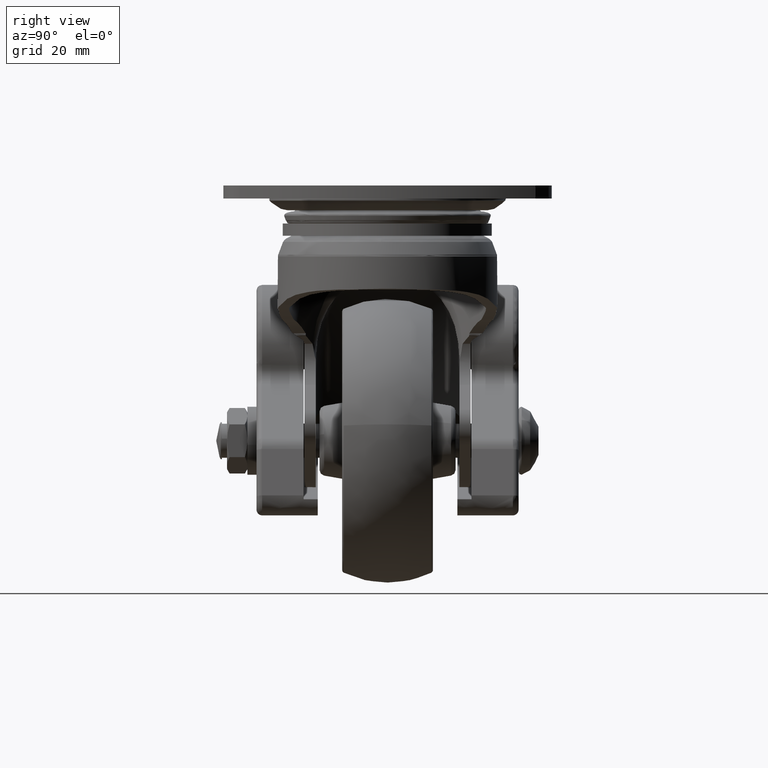
[diagram: clean part render]
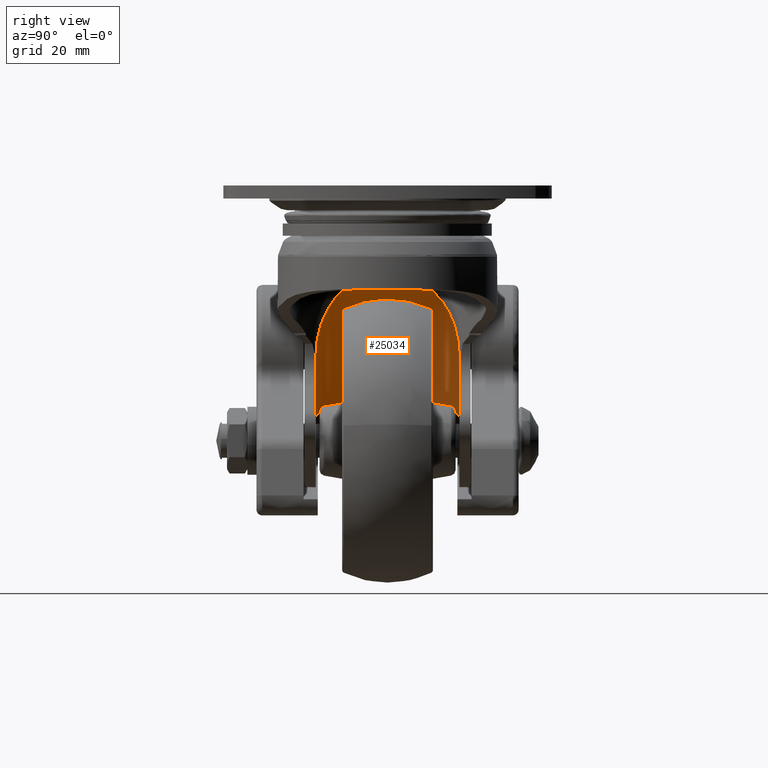
[diagram: same view with one face highlighted and labeled with its STEP entity id]
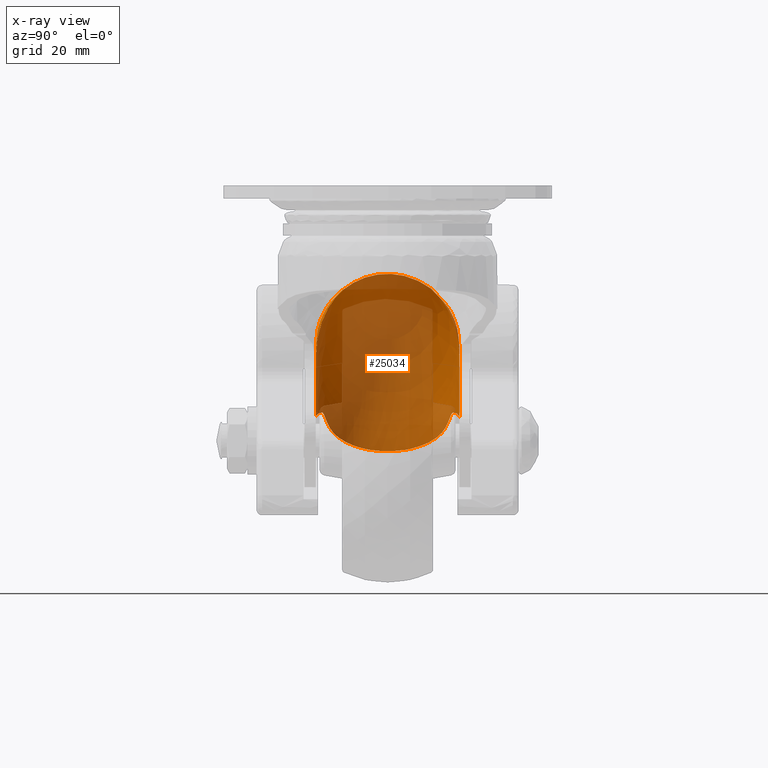
[diagram: x-ray of the same camera — body ghosted, the highlighted face saturated]
A machine part, right view. The second image highlights one B-rep face of the part: STEP entity #25034.
The next image is the same camera in x-ray: the body ghosted, the highlighted face saturated — about 70% of this face is hidden behind the body in this view.
In plain terms, the highlighted face is a freeform B-spline surface patch.
Its self-contained STEP definition (entity closure, byte-faithful):
#20699=CARTESIAN_POINT('',(-49.951948609154101,-3.185826654567455,-46.617844333149698));
#20700=VERTEX_POINT('',#20699);
#20701=CARTESIAN_POINT('',(-49.951948609149603,3.185826654585640,-46.617844333146202));
#20702=VERTEX_POINT('',#20701);
#20703=CARTESIAN_POINT('',(-49.951948609154101,-3.185826654567460,-46.617844333149797));
#20704=CARTESIAN_POINT('',(-50.016710709917866,-2.926549337797683,-46.668226546334992));
#20705=CARTESIAN_POINT('',(-50.073722563056997,-2.665436644574982,-46.706454283910610));
#20706=CARTESIAN_POINT('',(-50.171881320253647,-2.140157559981664,-46.767579103531823));
#20707=CARTESIAN_POINT('',(-50.213032522862193,-1.875984604010743,-46.790379975194121));
#20708=CARTESIAN_POINT('',(-50.279170487170589,-1.344891411273486,-46.825304705761489));
#20709=CARTESIAN_POINT('',(-50.304159348015332,-1.077969142038805,-46.837397511540402));
#20710=CARTESIAN_POINT('',(-50.337634945595198,-0.541514223877174,-46.853321062972753));
#20711=CARTESIAN_POINT('',(-50.346123360003169,-0.271981216651162,-46.857144180601210));
#20712=CARTESIAN_POINT('',(-50.346159028566532,0.134279719252725,-46.857160541771528));
#20713=CARTESIAN_POINT('',(-50.344048291225128,0.269728562428805,-46.856196787455652));
#20714=CARTESIAN_POINT('',(-50.335638563002057,0.539626043092193,-46.852303862828172));
#20715=CARTESIAN_POINT('',(-50.329340044060359,0.674235390254327,-46.849374933616403));
#20716=CARTESIAN_POINT('',(-50.304242965765447,1.077039757476378,-46.837438161526187));
#20717=CARTESIAN_POINT('',(-50.279244680199461,1.344216088543992,-46.825342461289317));
#20718=CARTESIAN_POINT('',(-50.213077171327207,1.875705477227742,-46.790404972403387));
#20719=CARTESIAN_POINT('',(-50.171905760073628,2.140020612255496,-46.767593908603743));
#20720=CARTESIAN_POINT('',(-50.073718751178824,2.665463204254526,-46.706452324057231));
#20721=CARTESIAN_POINT('',(-50.016698703145003,2.926597407330950,-46.668217205566719));
#20722=CARTESIAN_POINT('',(-49.951948609149603,3.185826654585635,-46.617844333146202));
#20723=B_SPLINE_CURVE_WITH_KNOTS('',3,(#20703,#20704,#20705,#20706,#20707,#20708,#20709,#20710,#20711,#20712,#20713,#20714,#20715,#20716,#20717,#20718,#20719,#20720,#20721,#20722),.UNSPECIFIED.,.F.,.U.,(4,2,2,2,2,2,2,2,2,4),(0.0,0.125000000000000,0.250000000000000,0.375000000000000,0.500000000000000,0.562500000000000,0.625000000000000,0.750000000000000,0.875000000000000,1.0),.UNSPECIFIED.);
#20724=EDGE_CURVE('',#20700,#20702,#20723,.T.);
#21308=CARTESIAN_POINT('',(-13.049048608369461,-12.650000000000000,-30.251865507138149));
#21309=VERTEX_POINT('',#21308);
#21319=CARTESIAN_POINT('',(-13.049048608369461,12.650000000000000,-30.251865507138149));
#21320=VERTEX_POINT('',#21319);
#21321=CARTESIAN_POINT('',(-13.049048608369430,12.650000000000000,-30.251865507138149));
#21322=CARTESIAN_POINT('',(-13.094314751037180,12.650000000000000,-29.770512729579110));
#21323=CARTESIAN_POINT('',(-13.162987734374020,12.630952149096650,-29.293596347752860));
#21324=CARTESIAN_POINT('',(-13.296897432158060,12.576236949162620,-28.584125186068420));
#21325=CARTESIAN_POINT('',(-13.346694200315881,12.553616279329370,-28.348621412933099));
#21326=CARTESIAN_POINT('',(-13.428682848332690,12.513216531832240,-27.996773126288780));
#21327=CARTESIAN_POINT('',(-13.457237173111190,12.498664536538870,-27.879706521774011));
#21328=CARTESIAN_POINT('',(-13.516386654334781,12.467580237104730,-27.647236051019590));
#21329=CARTESIAN_POINT('',(-13.547016703753780,12.451031201314690,-27.531677075637770));
#21330=CARTESIAN_POINT('',(-13.705173745750219,12.363347285720170,-26.957134430858559));
#21331=CARTESIAN_POINT('',(-13.847661705821180,12.277478572254390,-26.507862425143301));
#21332=CARTESIAN_POINT('',(-14.158716487562280,12.075307305902300,-25.627533900558689));
#21333=CARTESIAN_POINT('',(-14.327302152399970,11.958988259398719,-25.196489054506092));
#21334=CARTESIAN_POINT('',(-14.685913632533270,11.695117190588549,-24.351057524779701));
#21335=CARTESIAN_POINT('',(-14.875951715993819,11.547561545235331,-23.936676513617069));
#21336=CARTESIAN_POINT('',(-15.124437127789500,11.342185773185600,-23.428552133190799));
#21337=CARTESIAN_POINT('',(-15.174682361621651,11.300060503967110,-23.327421296154458));
#21338=CARTESIAN_POINT('',(-15.276211637143881,11.213660111724080,-23.126139156047682));
#21339=CARTESIAN_POINT('',(-15.327551377121370,11.169335772916030,-23.025881542423530));
#21340=CARTESIAN_POINT('',(-15.482565707149110,11.033476454150961,-22.727484674798220));
#21341=CARTESIAN_POINT('',(-15.587197440918310,10.939096452913450,-22.531773751059941));
#21342=CARTESIAN_POINT('',(-15.904135599253969,10.644257732251241,-21.953986686546319));
#21343=CARTESIAN_POINT('',(-16.119476568124060,10.432134477990321,-21.581229232256192));
#21344=CARTESIAN_POINT('',(-16.554185837394812,9.974476716952294,-20.859610654960740));
#21345=CARTESIAN_POINT('',(-16.773564974891521,9.728950868892021,-20.510750459445951));
#21346=CARTESIAN_POINT('',(-17.102725851749820,9.332999311657156,-20.005301955033062));
#21347=CARTESIAN_POINT('',(-17.212461659392389,9.196394902612136,-19.839799332966820));
#21348=CARTESIAN_POINT('',(-17.376710633827720,8.984122703501765,-19.596068706156931));
#21349=CARTESIAN_POINT('',(-17.431462364320691,8.912053367685742,-19.515490508086739));
#21350=CARTESIAN_POINT('',(-17.540393511146291,8.765900609242260,-19.356422892094422));
#21351=CARTESIAN_POINT('',(-17.594582151554160,8.691808921909427,-19.277917949373670));
#21352=CARTESIAN_POINT('',(-17.863978067259971,8.316191352161088,-18.890518961394939));
#21353=CARTESIAN_POINT('',(-18.074553952103919,7.999233235349609,-18.596954973839189));
#21354=CARTESIAN_POINT('',(-18.481545884996191,7.329596137220316,-18.042799767827091));
#21355=CARTESIAN_POINT('',(-18.677978964348458,6.976936593033883,-17.782197417694171));
#21356=CARTESIAN_POINT('',(-18.911681635076850,6.511161128756362,-17.478053521143821));
#21357=CARTESIAN_POINT('',(-18.957828159148900,6.416754036937226,-17.418309070280699));
#21358=CARTESIAN_POINT('',(-19.048848166638379,6.225349861332584,-17.301031013087101));
#21359=CARTESIAN_POINT('',(-19.093720091311390,6.128344716680036,-17.243500465356320));
#21360=CARTESIAN_POINT('',(-19.225488379152200,5.835155718067523,-17.075318222866169));
#21361=CARTESIAN_POINT('',(-19.309820890046339,5.636217324647125,-16.968707299139421));
#21362=CARTESIAN_POINT('',(-19.551563325170559,5.028711216503145,-16.665437301182809));
#21363=CARTESIAN_POINT('',(-19.697752229578889,4.609492168893882,-16.485273523385320));
#21364=CARTESIAN_POINT('',(-19.891245967815159,3.957707769777073,-16.249283406727269));
#21365=CARTESIAN_POINT('',(-19.951438201430960,3.736611220867187,-16.176345168639099));
#21366=CARTESIAN_POINT('',(-20.034760104647841,3.398908862136884,-16.075847137433051));
#21367=CARTESIAN_POINT('',(-20.061372226081730,3.285331017992628,-16.043833982367900));
#21368=CARTESIAN_POINT('',(-20.112177426684081,3.056092935574122,-15.982850913229679));
#21369=CARTESIAN_POINT('',(-20.136341525546609,2.940529607662348,-15.953916014730041));
#21370=CARTESIAN_POINT('',(-20.249972966902821,2.362327629250385,-15.818109678718271));
#21371=CARTESIAN_POINT('',(-20.318771297516559,1.894788304556411,-15.736710710507131));
#21372=CARTESIAN_POINT('',(-20.411045609615250,0.949723510081941,-15.627753877743659));
#21373=CARTESIAN_POINT('',(-20.434531497257989,0.472199949400071,-15.600186765683191));
#21374=CARTESIAN_POINT('',(-20.434096875770329,-0.131222985594782,-15.600697920158391));
#21375=CARTESIAN_POINT('',(-20.432516822247241,-0.252234614331121,-15.602555976779820));
#21376=CARTESIAN_POINT('',(-20.426318418525071,-0.494923670385986,-15.609847856829539));
#21377=CARTESIAN_POINT('',(-20.421703332635740,-0.616283211002929,-15.615277855397119));
#21378=CARTESIAN_POINT('',(-20.403425539509431,-0.978675010698859,-15.636797131426761));
#21379=CARTESIAN_POINT('',(-20.367208757691429,-1.458775845874774,-15.679460144739330));
#21380=CARTESIAN_POINT('',(-20.307948213848320,-1.932835966742944,-15.749558606432890));
#21381=CARTESIAN_POINT('',(-20.255042112170450,-2.286142467701807,-15.812366197881650));
#21382=CARTESIAN_POINT('',(-20.235996009436850,-2.403537959134941,-15.835009055965941));
#21383=CARTESIAN_POINT('',(-20.195105445516010,-2.637583858175276,-15.883715841834061));
#21384=CARTESIAN_POINT('',(-20.173219293647620,-2.754428778580712,-15.909829724095159));
#21385=CARTESIAN_POINT('',(-20.057592402972059,-3.333163139793181,-16.048094842349879));
#21386=CARTESIAN_POINT('',(-19.945133671242150,-3.780274323747450,-16.183452990412029));
#21387=CARTESIAN_POINT('',(-19.685651755501329,-4.645789274716693,-16.500148960499821));
#21388=CARTESIAN_POINT('',(-19.538603362293870,-5.064175452179820,-16.681511686896609));
#21389=CARTESIAN_POINT('',(-19.335710294380451,-5.570267545617733,-16.936285081656290));
#21390=CARTESIAN_POINT('',(-19.294175412644240,-5.670638831932132,-16.988648230325520));
#21391=CARTESIAN_POINT('',(-19.209249448459829,-5.869704197014394,-17.096193171748709));
#21392=CARTESIAN_POINT('',(-19.165801796890388,-5.968522573529494,-17.151447293868230));
#21393=CARTESIAN_POINT('',(-19.033141238656722,-6.261634895392838,-17.320958250207038));
#21394=CARTESIAN_POINT('',(-18.942115886885219,-6.451516324561253,-17.438315497094550));
#21395=CARTESIAN_POINT('',(-18.662344855867051,-7.005785801874967,-17.802841702979549));
#21396=CARTESIAN_POINT('',(-18.466928525620020,-7.354854851726079,-18.062419931627161));
#21397=CARTESIAN_POINT('',(-18.063093919316369,-8.016799760441982,-18.612860315635182));
#21398=CARTESIAN_POINT('',(-17.854658385659029,-8.329653497866588,-18.903734957869570));
#21399=CARTESIAN_POINT('',(-17.428957978834770,-8.922255380976530,-19.516282093707559));
#21400=CARTESIAN_POINT('',(-17.211680602453740,-9.201992544827125,-19.837957981814029));
#21401=CARTESIAN_POINT('',(-16.882160091729698,-9.598292206900860,-20.344013872151368));
#21402=CARTESIAN_POINT('',(-16.771523231324061,-9.726704736607823,-20.516956277133200));
#21403=CARTESIAN_POINT('',(-16.551594726449029,-9.973706965370642,-20.867595212675852));
#21404=CARTESIAN_POINT('',(-16.442092737591661,-10.092565407174961,-21.045603371878141));
#21405=CARTESIAN_POINT('',(-16.115685799337729,-10.435965190971549,-21.587690264874290));
#21406=CARTESIAN_POINT('',(-15.900872608937171,-10.647369213972320,-21.959807376996661));
#21407=CARTESIAN_POINT('',(-15.480696946264290,-11.038094128374510,-22.726056200606092));
#21408=CARTESIAN_POINT('',(-15.275323493888591,-11.217411010328901,-23.120183987279539));
#21409=CARTESIAN_POINT('',(-14.977507197380721,-11.463657190463360,-23.728919825808081));
#21410=CARTESIAN_POINT('',(-14.879946205430890,-11.541942234314680,-23.934762509524202));
#21411=CARTESIAN_POINT('',(-14.688838011877319,-11.691031362949531,-24.352574800589149));
#21412=CARTESIAN_POINT('',(-14.595705888326320,-11.761509156579020,-24.563654399987190));
#21413=CARTESIAN_POINT('',(-14.325104916720059,-11.960572890865169,-25.201808604405748));
#21414=CARTESIAN_POINT('',(-14.156065323887480,-12.077105958944809,-25.634522122091720));
#21415=CARTESIAN_POINT('',(-13.845079643399631,-12.279079993597540,-26.515693698440600));
#21416=CARTESIAN_POINT('',(-13.703118283306710,-12.364532976363300,-26.964144067623820));
#21417=CARTESIAN_POINT('',(-13.514497736748680,-12.469036642889121,-27.650042025498561));
#21418=CARTESIAN_POINT('',(-13.455686860153151,-12.499910603845329,-27.880884586006001));
#21419=CARTESIAN_POINT('',(-13.374170649770999,-12.540077188781380,-28.230709639281802));
#21420=CARTESIAN_POINT('',(-13.348116097573561,-12.552440766240910,-28.347912067990510));
#21421=CARTESIAN_POINT('',(-13.298354299525529,-12.575067099020099,-28.583553413976588));
#21422=CARTESIAN_POINT('',(-13.274669813749020,-12.585318186785271,-28.701901428520500));
#21423=CARTESIAN_POINT('',(-13.162893711673080,-12.630994229192581,-29.294048954574599));
#21424=CARTESIAN_POINT('',(-13.094260039600981,-12.650000000000009,-29.771094522067330));
#21425=CARTESIAN_POINT('',(-13.049048608369420,-12.650000000000000,-30.251865507138142));
#21426=B_SPLINE_CURVE_WITH_KNOTS('',3,(#21321,#21322,#21323,#21324,#21325,#21326,#21327,#21328,#21329,#21330,#21331,#21332,#21333,#21334,#21335,#21336,#21337,#21338,#21339,#21340,#21341,#21342,#21343,#21344,#21345,#21346,#21347,#21348,#21349,#21350,#21351,#21352,#21353,#21354,#21355,#21356,#21357,#21358,#21359,#21360,#21361,#21362,#21363,#21364,#21365,#21366,#21367,#21368,#21369,#21370,#21371,#21372,#21373,#21374,#21375,#21376,#21377,#21378,#21379,#21380,#21381,#21382,#21383,#21384,#21385,#21386,#21387,#21388,#21389,#21390,#21391,#21392,#21393,#21394,#21395,#21396,#21397,#21398,#21399,#21400,#21401,#21402,#21403,#21404,#21405,#21406,#21407,#21408,#21409,#21410,#21411,#21412,#21413,#21414,#21415,#21416,#21417,#21418,#21419,#21420,#21421,#21422,#21423,#21424,#21425),.UNSPECIFIED.,.F.,.U.,(4,2,2,2,2,2,2,2,2,2,2,2,2,2,2,2,2,2,2,2,2,2,2,2,2,2,2,2,2,1,2,2,2,2,2,2,2,2,2,2,2,2,2,2,2,2,2,2,2,2,2,2,4),(0.0,0.031249999999999,0.046874999999998,0.054687499999998,0.062499999999997,0.093749999999996,0.124999999999996,0.156249999999995,0.164062499999995,0.171874999999995,0.187499999999994,0.218749999999993,0.249999999999993,0.265624999999992,0.273437499999992,0.281249999999992,0.312499999999992,0.343749999999993,0.351562499999993,0.359374999999993,0.374999999999993,0.406249999999993,0.421874999999993,0.429687499999993,0.437499999999994,0.468749999999994,0.499999999999994,0.507812499999994,0.515624999999994,0.531249999999994,0.546874999999994,0.554687499999994,0.562499999999994,0.593749999999995,0.624999999999995,0.632812499999995,0.640624999999995,0.656249999999995,0.687499999999996,0.718749999999996,0.749999999999996,0.765624999999997,0.781249999999997,0.812499999999997,0.843749999999998,0.859374999999998,0.874999999999998,0.906249999999999,0.937499999999999,0.953124999999999,0.960937500000000,0.968750000000000,1.0),.UNSPECIFIED.);
#21427=EDGE_CURVE('',#21320,#21309,#21426,.T.);
#21627=CARTESIAN_POINT('',(-37.290212132296347,12.650000000000000,-41.081570756489199));
#21628=VERTEX_POINT('',#21627);
#21629=CARTESIAN_POINT('',(-13.049048608369420,12.650000000000000,-30.251865507138081));
#21630=CARTESIAN_POINT('',(-20.306420710780948,12.649999999999999,-26.339301999856662));
#21631=CARTESIAN_POINT('',(-27.834211466742762,12.650000000000000,-29.702331789470080));
#21632=CARTESIAN_POINT('',(-35.362002222704568,12.649999999999999,-33.065361579083508));
#21633=CARTESIAN_POINT('',(-37.290212132296347,12.650000000000000,-41.081570756489192));
#21641=(BOUNDED_CURVE()B_SPLINE_CURVE(2,(#21629,#21630,#21631,#21632,#21633),.UNSPECIFIED.,.F.,.U.)B_SPLINE_CURVE_WITH_KNOTS((3,2,3),(0.0,0.500000000000000,1.0),.UNSPECIFIED.)CURVE()GEOMETRIC_REPRESENTATION_ITEM()RATIONAL_B_SPLINE_CURVE((1.0,0.897248963918560,1.0,0.897248963918560,1.0))REPRESENTATION_ITEM(''));
#21642=EDGE_CURVE('',#21320,#21628,#21641,.T.);
#21753=CARTESIAN_POINT('',(-37.290212132296347,-12.650000000000000,-41.081570756489199));
#21754=VERTEX_POINT('',#21753);
#21755=CARTESIAN_POINT('',(-13.049048608369420,-12.650000000000000,-30.251865507138081));
#21756=CARTESIAN_POINT('',(-20.306420710780948,-12.649999999999999,-26.339301999856662));
#21757=CARTESIAN_POINT('',(-27.834211466742762,-12.650000000000000,-29.702331789470080));
#21758=CARTESIAN_POINT('',(-35.362002222704568,-12.649999999999999,-33.065361579083508));
#21759=CARTESIAN_POINT('',(-37.290212132296347,-12.650000000000000,-41.081570756489192));
#21767=(BOUNDED_CURVE()B_SPLINE_CURVE(2,(#21755,#21756,#21757,#21758,#21759),.UNSPECIFIED.,.F.,.U.)B_SPLINE_CURVE_WITH_KNOTS((3,2,3),(0.0,0.500000000000000,1.0),.UNSPECIFIED.)CURVE()GEOMETRIC_REPRESENTATION_ITEM()RATIONAL_B_SPLINE_CURVE((1.0,0.897248963918560,1.0,0.897248963918560,1.0))REPRESENTATION_ITEM(''));
#21768=EDGE_CURVE('',#21309,#21754,#21767,.T.);
#24200=CARTESIAN_POINT('',(-38.246648354383147,12.607435619457521,-40.629877154869952));
#24201=VERTEX_POINT('',#24200);
#24202=CARTESIAN_POINT('',(-38.246648354383147,12.607435619457529,-40.629877154869952));
#24203=CARTESIAN_POINT('',(-37.919136576381163,12.636291631080629,-40.765818899877537));
#24204=CARTESIAN_POINT('',(-37.600410379028673,12.650000000000000,-40.916513262149032));
#24205=CARTESIAN_POINT('',(-37.290212132296347,12.650000000000000,-41.081570756489207));
#24206=QUASI_UNIFORM_CURVE('',3,(#24202,#24203,#24204,#24205),.UNSPECIFIED.,.F.,.U.);
#24207=EDGE_CURVE('',#24201,#21628,#24206,.T.);
#24235=CARTESIAN_POINT('',(-38.246648488302696,-12.607435622033821,-40.629877810917193));
#24236=VERTEX_POINT('',#24235);
#24237=CARTESIAN_POINT('',(-37.290212132296347,-12.650000000000000,-41.081570756489207));
#24238=CARTESIAN_POINT('',(-37.600410317632878,-12.650000000000000,-40.916513294817932));
#24239=CARTESIAN_POINT('',(-37.919136450222133,-12.636291636499060,-40.765818959543971));
#24240=CARTESIAN_POINT('',(-38.246648488302696,-12.607435622033821,-40.629877810917193));
#24241=QUASI_UNIFORM_CURVE('',3,(#24237,#24238,#24239,#24240),.UNSPECIFIED.,.F.,.U.);
#24242=EDGE_CURVE('',#21754,#24236,#24241,.T.);
#24322=CARTESIAN_POINT('',(-48.054457000000212,7.342527084870750,-45.270967999999897));
#24323=VERTEX_POINT('',#24322);
#24324=CARTESIAN_POINT('',(-47.000676586926403,8.627497003607710,-44.460446245965102));
#24325=VERTEX_POINT('',#24324);
#24326=CARTESIAN_POINT('',(-48.054457000000212,7.342527084870750,-45.270967999999897));
#24327=CARTESIAN_POINT('',(-47.728294301519327,7.803608380646840,-45.020097758869873));
#24328=CARTESIAN_POINT('',(-47.376405992569673,8.231111655961154,-44.749440490800232));
#24329=CARTESIAN_POINT('',(-47.000676586926403,8.627497003607710,-44.460446245965102));
#24330=QUASI_UNIFORM_CURVE('',3,(#24326,#24327,#24328,#24329),.UNSPECIFIED.,.F.,.U.);
#24331=EDGE_CURVE('',#24323,#24325,#24330,.T.);
#24353=CARTESIAN_POINT('',(-47.000676859331698,-8.627496703686202,-44.460445891804049));
#24354=VERTEX_POINT('',#24353);
#24355=CARTESIAN_POINT('',(-48.054456817734902,-7.342527336947860,-45.270968257164000));
#24356=VERTEX_POINT('',#24355);
#24357=CARTESIAN_POINT('',(-47.000676859331790,-8.627496703686308,-44.460445891804113));
#24358=CARTESIAN_POINT('',(-47.376406038084497,-8.231111595200440,-44.749440525808282));
#24359=CARTESIAN_POINT('',(-47.728294274954322,-7.803608405557957,-45.020097738437201));
#24360=CARTESIAN_POINT('',(-48.054456817734902,-7.342527336947860,-45.270968257164000));
#24361=QUASI_UNIFORM_CURVE('',3,(#24357,#24358,#24359,#24360),.UNSPECIFIED.,.F.,.U.);
#24362=EDGE_CURVE('',#24354,#24356,#24361,.T.);
#24394=CARTESIAN_POINT('',(-44.195181903451903,-10.736093179816059,-41.586183669560803));
#24395=VERTEX_POINT('',#24394);
#24396=CARTESIAN_POINT('',(-47.000676859331698,-8.627496703686202,-44.460445891804049));
#24397=CARTESIAN_POINT('',(-46.532969300507951,-9.120916746775299,-44.100705794338779));
#24398=CARTESIAN_POINT('',(-46.053766844654497,-9.538355604012171,-43.685866773790472));
#24399=CARTESIAN_POINT('',(-45.459840888023727,-9.976195115904755,-43.087413459765273));
#24400=CARTESIAN_POINT('',(-45.341306003818410,-10.059545357638211,-42.963713885365379));
#24401=CARTESIAN_POINT('',(-45.105223375497900,-10.218014492905549,-42.707957343800530));
#24402=CARTESIAN_POINT('',(-44.987401388184438,-10.293291902410740,-42.575568413978090));
#24403=CARTESIAN_POINT('',(-44.639038711672633,-10.505345016550530,-42.168731637998540));
#24404=CARTESIAN_POINT('',(-44.413168739064467,-10.628748572737670,-41.884258532661917));
#24405=CARTESIAN_POINT('',(-44.195181903451868,-10.736093179816139,-41.586183669560867));
#24406=B_SPLINE_CURVE_WITH_KNOTS('',3,(#24396,#24397,#24398,#24399,#24400,#24401,#24402,#24403,#24404,#24405),.UNSPECIFIED.,.F.,.U.,(4,2,2,2,4),(0.0,0.499999999999998,0.624999999999997,0.749999999999996,1.0),.UNSPECIFIED.);
#24407=EDGE_CURVE('',#24354,#24395,#24406,.T.);
#24432=CARTESIAN_POINT('',(-44.195182195589098,10.736092980329801,-41.586183455964097));
#24433=VERTEX_POINT('',#24432);
#24439=CARTESIAN_POINT('',(-44.195182195589098,10.736092980329801,-41.586183455964097));
#24440=CARTESIAN_POINT('',(-44.413066289807190,10.628799019988490,-41.884118438773292));
#24441=CARTESIAN_POINT('',(-44.637592765234693,10.506053220671969,-42.166790875433783));
#24442=CARTESIAN_POINT('',(-45.096464899832277,10.227072260487111,-42.703186162372297));
#24443=CARTESIAN_POINT('',(-45.330816932931839,10.070835470541409,-42.956902284719739));
#24444=CARTESIAN_POINT('',(-45.687095753087483,9.808886495625151,-43.316636474366639));
#24445=CARTESIAN_POINT('',(-45.806646329712393,9.716965853441632,-43.433072072241671));
#24446=CARTESIAN_POINT('',(-46.046873039689558,9.523433156579264,-43.659113801085617));
#24447=CARTESIAN_POINT('',(-46.167844172303738,9.421549924518066,-43.768969949599558));
#24448=CARTESIAN_POINT('',(-46.528654602068478,9.103336587658459,-44.085810872905292));
#24449=CARTESIAN_POINT('',(-46.766813611325290,8.874216716009483,-44.280568839653007));
#24450=CARTESIAN_POINT('',(-47.000676586926417,8.627497003607823,-44.460446245965223));
#24451=B_SPLINE_CURVE_WITH_KNOTS('',3,(#24439,#24440,#24441,#24442,#24443,#24444,#24445,#24446,#24447,#24448,#24449,#24450),.UNSPECIFIED.,.F.,.U.,(4,2,2,2,2,4),(0.0,0.249999999999999,0.499999999999998,0.624999999999998,0.749999999999999,1.0),.UNSPECIFIED.);
#24452=EDGE_CURVE('',#24433,#24325,#24451,.T.);
#24473=CARTESIAN_POINT('',(-43.217319804681999,-11.181787407545540,-40.491777433453237));
#24474=VERTEX_POINT('',#24473);
#24475=CARTESIAN_POINT('',(-43.217319804681999,-11.181787407545540,-40.491777433453237));
#24476=CARTESIAN_POINT('',(-43.397783031645929,-11.105695066037841,-40.657817219986697));
#24477=CARTESIAN_POINT('',(-43.569397326114903,-11.030124350085700,-40.831976068583728));
#24478=CARTESIAN_POINT('',(-43.895319784189070,-10.881163029881900,-41.196644854472567));
#24479=CARTESIAN_POINT('',(-44.049628216725409,-10.807769029932810,-41.387153168581051));
#24480=CARTESIAN_POINT('',(-44.195181903451903,-10.736093179816059,-41.586183669560803));
#24481=B_SPLINE_CURVE_WITH_KNOTS('',3,(#24475,#24476,#24477,#24478,#24479,#24480),.UNSPECIFIED.,.F.,.U.,(4,2,4),(0.0,0.500000000000000,1.0),.UNSPECIFIED.);
#24482=EDGE_CURVE('',#24474,#24395,#24481,.T.);
#24508=CARTESIAN_POINT('',(-43.217320588680103,11.181786911447141,-40.491776581346798));
#24509=VERTEX_POINT('',#24508);
#24510=CARTESIAN_POINT('',(-44.195182195589098,10.736092980329801,-41.586183455964097));
#24511=CARTESIAN_POINT('',(-44.049628379249562,10.807768930964640,-41.387153072908653));
#24512=CARTESIAN_POINT('',(-43.895320056297052,10.881162857893040,-41.196644592325768));
#24513=CARTESIAN_POINT('',(-43.569397839598487,11.030124021590231,-40.831975500950740));
#24514=CARTESIAN_POINT('',(-43.397783679411901,11.105694653743321,-40.657816510989022));
#24515=CARTESIAN_POINT('',(-43.217320588680103,11.181786911447141,-40.491776581346798));
#24516=B_SPLINE_CURVE_WITH_KNOTS('',3,(#24510,#24511,#24512,#24513,#24514,#24515),.UNSPECIFIED.,.F.,.U.,(4,2,4),(0.0,0.500000000000000,0.999999928033350),.UNSPECIFIED.);
#24517=EDGE_CURVE('',#24433,#24509,#24516,.T.);
#24543=CARTESIAN_POINT('',(-42.645722449947847,11.421015344983200,-40.097900892827553));
#24544=VERTEX_POINT('',#24543);
#24545=CARTESIAN_POINT('',(-43.217320588680103,11.181786911447160,-40.491776581346812));
#24546=CARTESIAN_POINT('',(-43.130498892863407,11.218395295765569,-40.411894068193732));
#24547=CARTESIAN_POINT('',(-43.039361943364923,11.256882146177540,-40.339414676173732));
#24548=CARTESIAN_POINT('',(-42.848806704316182,11.336837313281579,-40.208284445101839));
#24549=CARTESIAN_POINT('',(-42.749386484466342,11.378308983320540,-40.149638443942322));
#24550=CARTESIAN_POINT('',(-42.645722449947847,11.421015344983200,-40.097900892827553));
#24551=B_SPLINE_CURVE_WITH_KNOTS('',3,(#24545,#24546,#24547,#24548,#24549,#24550),.UNSPECIFIED.,.F.,.U.,(4,2,4),(0.0,0.500000000000000,1.0),.UNSPECIFIED.);
#24552=EDGE_CURVE('',#24509,#24544,#24551,.T.);
#24578=CARTESIAN_POINT('',(-42.645722555433991,-11.421015273763540,-40.097900681540047));
#24579=VERTEX_POINT('',#24578);
#24580=CARTESIAN_POINT('',(-42.645722555433991,-11.421015273763540,-40.097900681540047));
#24581=CARTESIAN_POINT('',(-42.749386341099992,-11.378309070897471,-40.149638594902321));
#24582=CARTESIAN_POINT('',(-42.848806427903341,-11.336837484606839,-40.208284744672618));
#24583=CARTESIAN_POINT('',(-43.039361407775452,-11.256882482240741,-40.339415261253649));
#24584=CARTESIAN_POINT('',(-43.130498231137011,-11.218395712826720,-40.411894790186892));
#24585=CARTESIAN_POINT('',(-43.217319804681999,-11.181787407545540,-40.491777433453237));
#24586=B_SPLINE_CURVE_WITH_KNOTS('',3,(#24580,#24581,#24582,#24583,#24584,#24585),.UNSPECIFIED.,.F.,.U.,(4,2,4),(0.0,0.500000000000000,1.0),.UNSPECIFIED.);
#24587=EDGE_CURVE('',#24579,#24474,#24586,.T.);
#24613=CARTESIAN_POINT('',(-40.372742061033357,12.239612021456621,-40.232056483149947));
#24614=VERTEX_POINT('',#24613);
#24615=CARTESIAN_POINT('',(-42.645722449947847,11.421015344983200,-40.097900892827553));
#24616=CARTESIAN_POINT('',(-42.276400602920873,11.590583075215010,-40.079172073624832));
#24617=CARTESIAN_POINT('',(-41.902314083638601,11.743735607815260,-40.079879144990869));
#24618=CARTESIAN_POINT('',(-41.144698639070938,12.016941010553310,-40.123281089648358));
#24619=CARTESIAN_POINT('',(-40.761170234830672,12.136999664154949,-40.165949501066571));
#24620=CARTESIAN_POINT('',(-40.372742061033357,12.239612021456621,-40.232056483149947));
#24621=B_SPLINE_CURVE_WITH_KNOTS('',3,(#24615,#24616,#24617,#24618,#24619,#24620),.UNSPECIFIED.,.F.,.U.,(4,2,4),(0.0,0.500000000000000,1.0),.UNSPECIFIED.);
#24622=EDGE_CURVE('',#24544,#24614,#24621,.T.);
#24648=CARTESIAN_POINT('',(-40.372741976588863,-12.239612011894801,-40.232055986815652));
#24649=VERTEX_POINT('',#24648);
#24650=CARTESIAN_POINT('',(-40.372741976588863,-12.239612011894801,-40.232055986815652));
#24651=CARTESIAN_POINT('',(-40.761170217894360,-12.136999670139909,-40.165949502126239));
#24652=CARTESIAN_POINT('',(-41.144698651231543,-12.016941007475371,-40.123281087468477));
#24653=CARTESIAN_POINT('',(-41.902314152571641,-11.743735581649840,-40.079879142525122));
#24654=CARTESIAN_POINT('',(-42.276400699529319,-11.590583035023100,-40.079172074122333));
#24655=CARTESIAN_POINT('',(-42.645722555433991,-11.421015273763540,-40.097900681540047));
#24656=B_SPLINE_CURVE_WITH_KNOTS('',3,(#24650,#24651,#24652,#24653,#24654,#24655),.UNSPECIFIED.,.F.,.U.,(4,2,4),(0.0,0.500000000000000,1.0),.UNSPECIFIED.);
#24657=EDGE_CURVE('',#24649,#24579,#24656,.T.);
#24683=CARTESIAN_POINT('',(-40.372742061033371,12.239612021456720,-40.232056483149918));
#24684=CARTESIAN_POINT('',(-39.672335023897148,12.424640802025420,-40.351258474945553));
#24685=CARTESIAN_POINT('',(-38.963585582628873,12.547323456768961,-40.483520773807278));
#24686=CARTESIAN_POINT('',(-38.246648354383147,12.607435619457521,-40.629877154869952));
#24687=QUASI_UNIFORM_CURVE('',3,(#24683,#24684,#24685,#24686),.UNSPECIFIED.,.F.,.U.);
#24688=EDGE_CURVE('',#24614,#24201,#24687,.T.);
#24710=CARTESIAN_POINT('',(-38.246648488302711,-12.607435622033931,-40.629877810917158));
#24711=CARTESIAN_POINT('',(-38.963585592530443,-12.547323455335169,-40.483520771903621));
#24712=CARTESIAN_POINT('',(-39.672335033524647,-12.424640800061400,-40.351258473203373));
#24713=CARTESIAN_POINT('',(-40.372741976588863,-12.239612011894801,-40.232055986815652));
#24714=QUASI_UNIFORM_CURVE('',3,(#24710,#24711,#24712,#24713),.UNSPECIFIED.,.F.,.U.);
#24715=EDGE_CURVE('',#24236,#24649,#24714,.T.);
#24737=CARTESIAN_POINT('',(-49.941464742660500,3.227504789400985,-46.609684835811713));
#24738=VERTEX_POINT('',#24737);
#24739=CARTESIAN_POINT('',(-49.941464742660500,3.227504789400985,-46.609684835811713));
#24740=CARTESIAN_POINT('',(-49.944982805488472,3.213616436859404,-46.612423921855473));
#24741=CARTESIAN_POINT('',(-49.948477507605297,3.199723791007199,-46.615144055112481));
#24742=CARTESIAN_POINT('',(-49.951948609149603,3.185826654585640,-46.617844333146202));
#24743=B_SPLINE_CURVE_WITH_KNOTS('',3,(#24739,#24740,#24741,#24742),.UNSPECIFIED.,.F.,.U.,(4,4),(0.0,0.006615669404760),.UNSPECIFIED.);
#24744=EDGE_CURVE('',#24738,#20702,#24743,.T.);
#24770=CARTESIAN_POINT('',(-49.653044422145001,4.199564021537626,-46.403968658479002));
#24771=VERTEX_POINT('',#24770);
#24772=CARTESIAN_POINT('',(-49.941464742660500,3.227504789400985,-46.609684835811713));
#24773=CARTESIAN_POINT('',(-49.858453758219873,3.555222134952439,-46.545040708582690));
#24774=CARTESIAN_POINT('',(-49.762480037314653,3.879072193536958,-46.475277124055900));
#24775=CARTESIAN_POINT('',(-49.653044422145001,4.199564021537626,-46.403968658479002));
#24776=B_SPLINE_CURVE_WITH_KNOTS('',3,(#24772,#24773,#24774,#24775),.UNSPECIFIED.,.F.,.U.,(4,4),(0.879817125571169,1.0),.UNSPECIFIED.);
#24777=EDGE_CURVE('',#24738,#24771,#24776,.T.);
#24803=CARTESIAN_POINT('',(-49.653044422145094,-4.199564021537225,-46.403968658479087));
#24804=VERTEX_POINT('',#24803);
#24805=CARTESIAN_POINT('',(-49.941464979240912,-3.227503958146745,-46.609684532010199));
#24806=VERTEX_POINT('',#24805);
#24807=CARTESIAN_POINT('',(-49.653044422145172,-4.199564021537243,-46.403968658479059));
#24808=CARTESIAN_POINT('',(-49.762183119770562,-3.879941742689764,-46.475083651992399));
#24809=CARTESIAN_POINT('',(-49.858246906077973,-3.556038575507848,-46.544880399031783));
#24810=CARTESIAN_POINT('',(-49.941464979240912,-3.227503958146745,-46.609684532010199));
#24811=B_SPLINE_CURVE_WITH_KNOTS('',3,(#24807,#24808,#24809,#24810),.UNSPECIFIED.,.F.,.U.,(4,4),(0.0,0.119063697463415),.UNSPECIFIED.);
#24812=EDGE_CURVE('',#24804,#24806,#24811,.T.);
#24833=CARTESIAN_POINT('',(-49.653044422145008,4.199564021537610,-46.403968658478952));
#24834=CARTESIAN_POINT('',(-49.456481582991103,4.776777676926279,-46.264654569572869));
#24835=CARTESIAN_POINT('',(-49.223336451420948,5.326038796322088,-46.099412748039363));
#24836=CARTESIAN_POINT('',(-48.689421740945569,6.372889183152620,-45.721000217147889));
#24837=CARTESIAN_POINT('',(-48.388604319757583,6.870441894290782,-45.507795599529032));
#24838=CARTESIAN_POINT('',(-48.054457000000212,7.342527084870750,-45.270967999999897));
#24839=B_SPLINE_CURVE_WITH_KNOTS('',3,(#24833,#24834,#24835,#24836,#24837,#24838),.UNSPECIFIED.,.F.,.U.,(4,2,4),(0.0,0.500000000000000,1.0),.UNSPECIFIED.);
#24840=EDGE_CURVE('',#24771,#24323,#24839,.T.);
#24853=CARTESIAN_POINT('',(-48.054456817734867,-7.342527336947851,-45.270968257164007));
#24854=CARTESIAN_POINT('',(-48.388604230997643,-6.870442036533472,-45.507795536620350));
#24855=CARTESIAN_POINT('',(-48.689421675340682,-6.372889301075165,-45.721000170650363));
#24856=CARTESIAN_POINT('',(-49.223336424514130,-5.326038859787947,-46.099412728969106));
#24857=CARTESIAN_POINT('',(-49.456481571638363,-4.776777710264089,-46.264654561526577));
#24858=CARTESIAN_POINT('',(-49.653044422145129,-4.199564021537228,-46.403968658479037));
#24859=B_SPLINE_CURVE_WITH_KNOTS('',3,(#24853,#24854,#24855,#24856,#24857,#24858),.UNSPECIFIED.,.F.,.U.,(4,2,4),(0.0,0.500000000000000,1.0),.UNSPECIFIED.);
#24860=EDGE_CURVE('',#24356,#24804,#24859,.T.);
#24969=CARTESIAN_POINT('',(-12.581140367207247,12.522874239622203,-32.626524067010379));
#24970=CARTESIAN_POINT('',(-20.769599301850121,12.522874239622208,-27.055131941387220));
#24971=CARTESIAN_POINT('',(-29.098401644152599,12.522874239622205,-32.414452932393957));
#24972=CARTESIAN_POINT('',(-37.391818903530350,12.522874239622203,-37.751004741243037));
#24973=CARTESIAN_POINT('',(-35.759556271475880,12.522874239622201,-47.477014907116477));
#24974=CARTESIAN_POINT('',(-4.458779153158450,14.585464285606395,-20.688821648310942));
#24975=CARTESIAN_POINT('',(-20.547312938142046,14.585464285606399,-9.742252683635657));
#24976=CARTESIAN_POINT('',(-36.911590873966830,14.585464285606395,-20.272148176375772));
#24977=CARTESIAN_POINT('',(-53.206344848486701,14.585464285606397,-30.757307198026052));
#24978=CARTESIAN_POINT('',(-49.999305195314221,14.585464285606394,-49.866793414625519));
#24979=CARTESIAN_POINT('',(-4.458779153158454,0.0,-20.688821648310945));
#24980=CARTESIAN_POINT('',(-20.547312938142035,0.0,-9.742252683635655));
#24981=CARTESIAN_POINT('',(-36.911590873966823,0.0,-20.272148176375779));
#24982=CARTESIAN_POINT('',(-53.206344848486701,0.0,-30.757307198026055));
#24983=CARTESIAN_POINT('',(-49.999305195314207,0.0,-49.866793414625526));
#24984=CARTESIAN_POINT('',(-4.458779153158450,-14.585462940758127,-20.688821648310931));
#24985=CARTESIAN_POINT('',(-20.547312938142049,-14.585462940758129,-9.742252683635657));
#24986=CARTESIAN_POINT('',(-36.911590873966823,-14.585462940758125,-20.272148176375779));
#24987=CARTESIAN_POINT('',(-53.206344848486708,-14.585462940758127,-30.757307198026062));
#24988=CARTESIAN_POINT('',(-49.999305195314214,-14.585462940758125,-49.866793414625526));
#24989=CARTESIAN_POINT('',(-12.581139724195193,-12.522874402908451,-32.626523121954328));
#24990=CARTESIAN_POINT('',(-20.769599284252681,-12.522874402908444,-27.055130570801772));
#24991=CARTESIAN_POINT('',(-29.098402262688857,-12.522874402908448,-32.414451971140437));
#24992=CARTESIAN_POINT('',(-37.391820155497662,-12.522874402908451,-37.751004187582382));
#24993=CARTESIAN_POINT('',(-35.759557398774959,-12.522874402908444,-47.477015096304875));
#25001=(BOUNDED_SURFACE()B_SPLINE_SURFACE(2,2,((#24969,#24974,#24979,#24984,#24989),(#24970,#24975,#24980,#24985,#24990),(#24971,#24976,#24981,#24986,#24991),(#24972,#24977,#24982,#24987,#24992),(#24973,#24978,#24983,#24988,#24993)),.UNSPECIFIED.,.F.,.F.,.U.)B_SPLINE_SURFACE_WITH_KNOTS((3,2,3),(3,2,3),(0.0,35.392112317887872,70.660695155660150),(0.0,23.094251603532641,46.188501816701773),.UNSPECIFIED.)GEOMETRIC_REPRESENTATION_ITEM()RATIONAL_B_SPLINE_SURFACE(((0.962329001683695,0.632711771850932,0.969023902655869,0.632711792098227,0.962328961995226),(0.815239074840626,0.536003132631420,0.820910674537981,0.536003149783959,0.815239041218455),(0.993091087893885,0.652937218696894,1.0,0.652937239591419,0.993091046936723),(0.815859833684084,0.536411268962185,0.821535751986591,0.536411286127785,0.815859800036311),(0.961306181025400,0.632039288043562,0.967993966257523,0.632039308269336,0.961306141379115)))REPRESENTATION_ITEM('')SURFACE());
#25002=CARTESIAN_POINT('',(-49.951948609154101,-3.185826654567455,-46.617844333149698));
#25003=CARTESIAN_POINT('',(-49.948477376776893,-3.199724308205871,-46.615143950499089));
#25004=CARTESIAN_POINT('',(-49.944982740488577,-3.213616689765339,-46.612423871187673));
#25005=CARTESIAN_POINT('',(-49.941464979240919,-3.227503958146746,-46.609684532010156));
#25006=B_SPLINE_CURVE_WITH_KNOTS('',3,(#25002,#25003,#25004,#25005),.UNSPECIFIED.,.F.,.U.,(4,4),(0.993384666916306,1.0),.UNSPECIFIED.);
#25007=EDGE_CURVE('',#20700,#24806,#25006,.T.);
#25008=ORIENTED_EDGE('',*,*,#25007,.F.);
#25009=ORIENTED_EDGE('',*,*,#20724,.T.);
#25010=ORIENTED_EDGE('',*,*,#24744,.F.);
#25011=ORIENTED_EDGE('',*,*,#24777,.T.);
#25012=ORIENTED_EDGE('',*,*,#24840,.T.);
#25013=ORIENTED_EDGE('',*,*,#24331,.T.);
#25014=ORIENTED_EDGE('',*,*,#24452,.F.);
#25015=ORIENTED_EDGE('',*,*,#24517,.T.);
#25016=ORIENTED_EDGE('',*,*,#24552,.T.);
#25017=ORIENTED_EDGE('',*,*,#24622,.T.);
#25018=ORIENTED_EDGE('',*,*,#24688,.T.);
#25019=ORIENTED_EDGE('',*,*,#24207,.T.);
#25020=ORIENTED_EDGE('',*,*,#21642,.F.);
#25021=ORIENTED_EDGE('',*,*,#21427,.T.);
#25022=ORIENTED_EDGE('',*,*,#21768,.T.);
#25023=ORIENTED_EDGE('',*,*,#24242,.T.);
#25024=ORIENTED_EDGE('',*,*,#24715,.T.);
#25025=ORIENTED_EDGE('',*,*,#24657,.T.);
#25026=ORIENTED_EDGE('',*,*,#24587,.T.);
#25027=ORIENTED_EDGE('',*,*,#24482,.T.);
#25028=ORIENTED_EDGE('',*,*,#24407,.F.);
#25029=ORIENTED_EDGE('',*,*,#24362,.T.);
#25030=ORIENTED_EDGE('',*,*,#24860,.T.);
#25031=ORIENTED_EDGE('',*,*,#24812,.T.);
#25032=EDGE_LOOP('',(#25008,#25009,#25010,#25011,#25012,#25013,#25014,#25015,#25016,#25017,#25018,#25019,#25020,#25021,#25022,#25023,#25024,#25025,#25026,#25027,#25028,#25029,#25030,#25031));
#25033=FACE_OUTER_BOUND('',#25032,.T.);
#25034=ADVANCED_FACE('',(#25033),#25001,.F.);